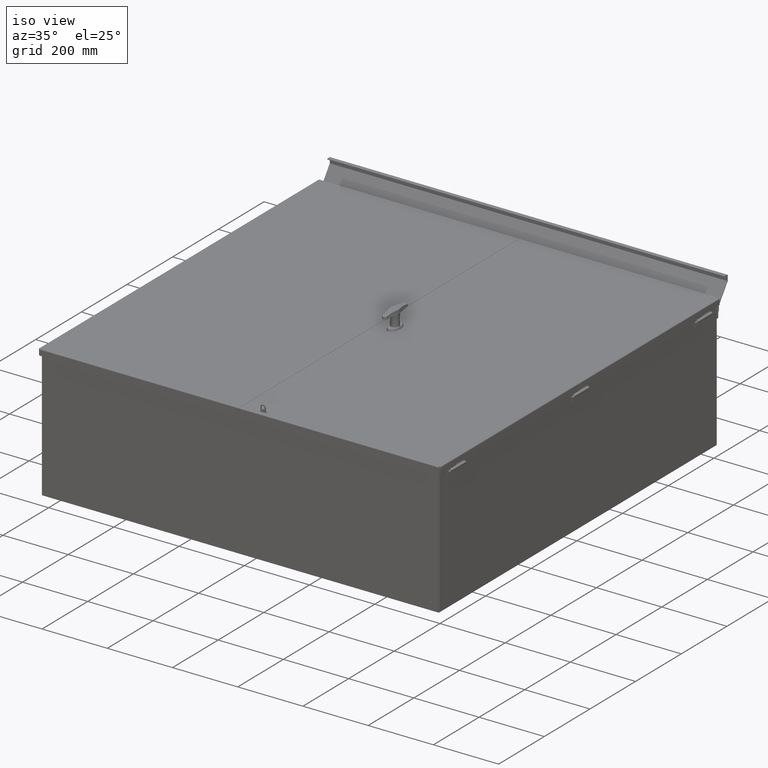
[diagram: clean part render]
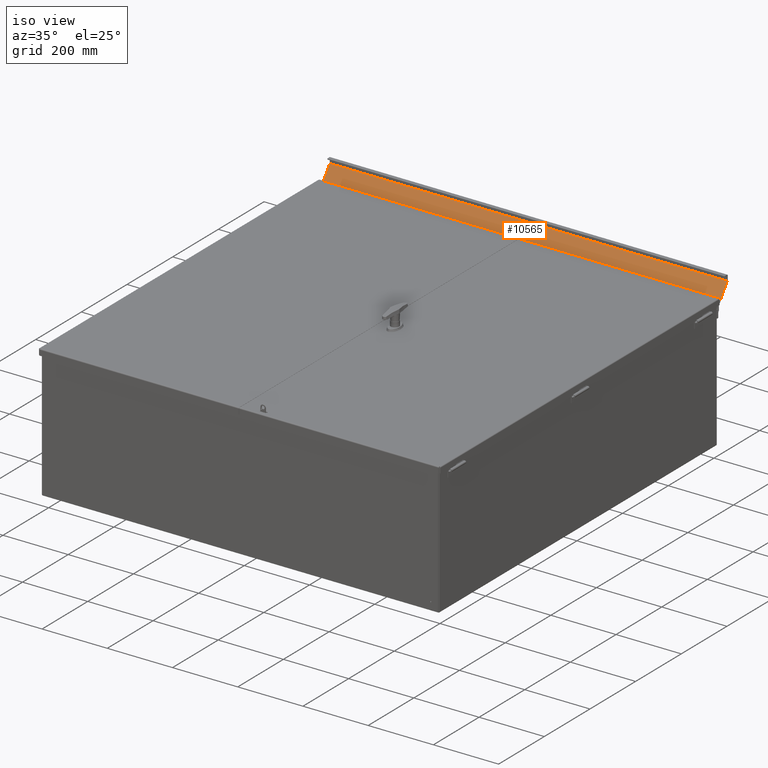
[diagram: same view with one face highlighted and labeled with its STEP entity id]
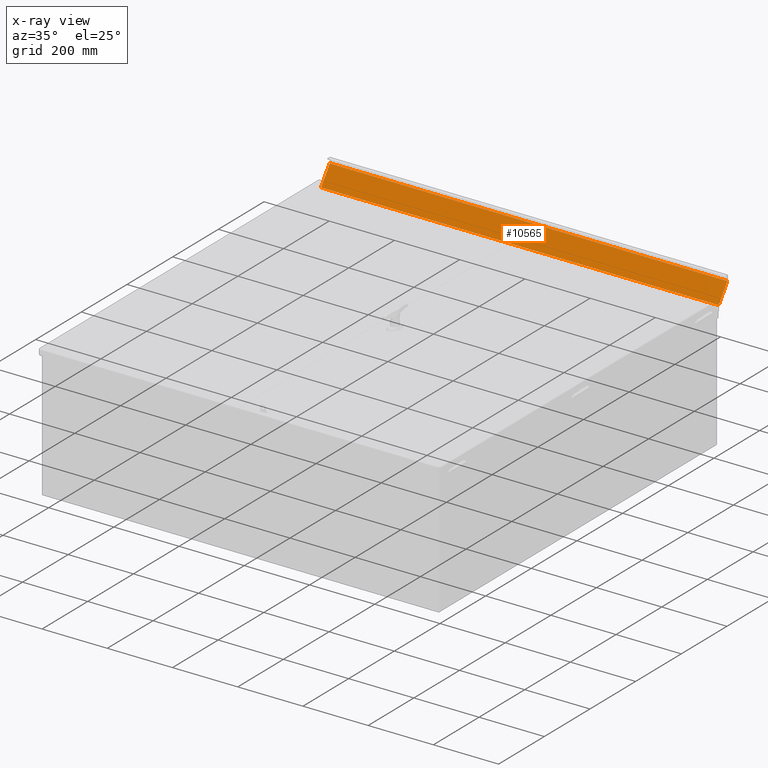
[diagram: x-ray of the same camera — body ghosted, the highlighted face saturated]
A machine part, iso view. The second image highlights one B-rep face of the part: STEP entity #10565.
The next image is the same camera in x-ray: the body ghosted, the highlighted face saturated — about 0% of this face is hidden behind the body in this view.
In plain terms, the highlighted planar face has unit normal (-0, -0.809, 0.5878).
Its self-contained STEP definition (entity closure, byte-faithful):
#1123=PLANE($,#11502);
#1614=FACE_OUTER_BOUND($,#2343,.T.);
#2343=EDGE_LOOP($,(#8752,#8753,#8754,#8755));
#3687=LINE($,#17165,#4483);
#3697=LINE($,#17197,#4493);
#3719=LINE($,#17280,#4515);
#3722=LINE($,#17286,#4518);
#4483=VECTOR($,#13787,2.55660440394295);
#4493=VECTOR($,#13815,2.55660440394268);
#4515=VECTOR($,#13907,48.);
#4518=VECTOR($,#13916,48.);
#5215=VERTEX_POINT($,#17162);
#5216=VERTEX_POINT($,#17164);
#5228=VERTEX_POINT($,#17194);
#5229=VERTEX_POINT($,#17196);
#6419=EDGE_CURVE($,#5216,#5215,#3687,.T.);
#6435=EDGE_CURVE($,#5229,#5228,#3697,.T.);
#6475=EDGE_CURVE($,#5215,#5229,#3719,.T.);
#6478=EDGE_CURVE($,#5216,#5228,#3722,.T.);
#8752=ORIENTED_EDGE($,*,*,#6475,.T.);
#8753=ORIENTED_EDGE($,*,*,#6435,.T.);
#8754=ORIENTED_EDGE($,*,*,#6478,.F.);
#8755=ORIENTED_EDGE($,*,*,#6419,.T.);
#10565=ADVANCED_FACE($,(#1614),#1123,.T.);
#11502=AXIS2_PLACEMENT_3D($,#17285,#13914,#13915);
#13787=DIRECTION($,(7.60050248765501E-017,-0.587785252292473,-0.809016994374947));
#13815=DIRECTION($,(-7.60050248765501E-017,0.587785252292473,0.809016994374947));
#13907=DIRECTION($,(1.,1.28678251520917E-016,-8.6604727863408E-019));
#13914=DIRECTION('center_axis',(1.04611942105045E-016,-0.809016994374947,
0.587785252292473));
#13915=DIRECTION('ref_axis',(1.,0.,0.));
#13916=DIRECTION($,(1.,-1.7391746430746E-015,-5.61654742011281E-015));
#17162=CARTESIAN_POINT('',(1.98464307889726E-016,-1.02020258350945,-2.69190690178932));
#17164=CARTESIAN_POINT('',(3.00759333549388E-019,0.482531781074212,-0.623570491105633));
#17165=CARTESIAN_POINT($,(-1.64474672414323E-016,0.502632742416254,-0.595903891330357));
#17194=CARTESIAN_POINT('',(48.,0.482531781074059,-0.623570491105852));
#17196=CARTESIAN_POINT('',(48.,-1.02020258350944,-2.69190690178932));
#17197=CARTESIAN_POINT($,(48.,0.50263274241626,-0.595903891330357));
#17280=CARTESIAN_POINT($,(24.,-1.02020258350944,-2.69190690178932));
#17285=CARTESIAN_POINT('Origin',(3.50385178866208E-017,-1.04030354485149,
-2.71957350156459));
#17286=CARTESIAN_POINT($,(48.,0.482531781074129,-0.623570491105903));